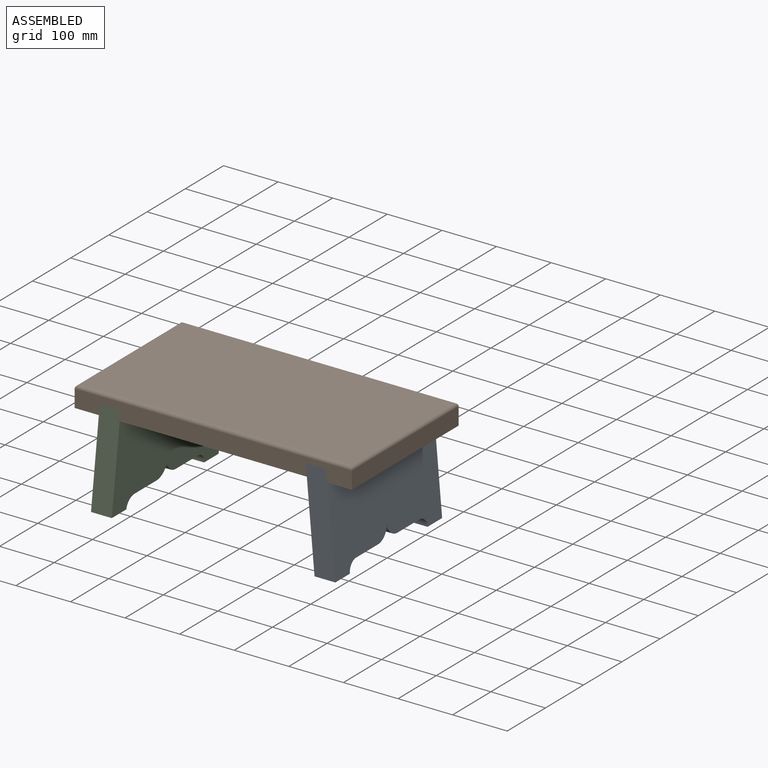
[diagram: assembled view]
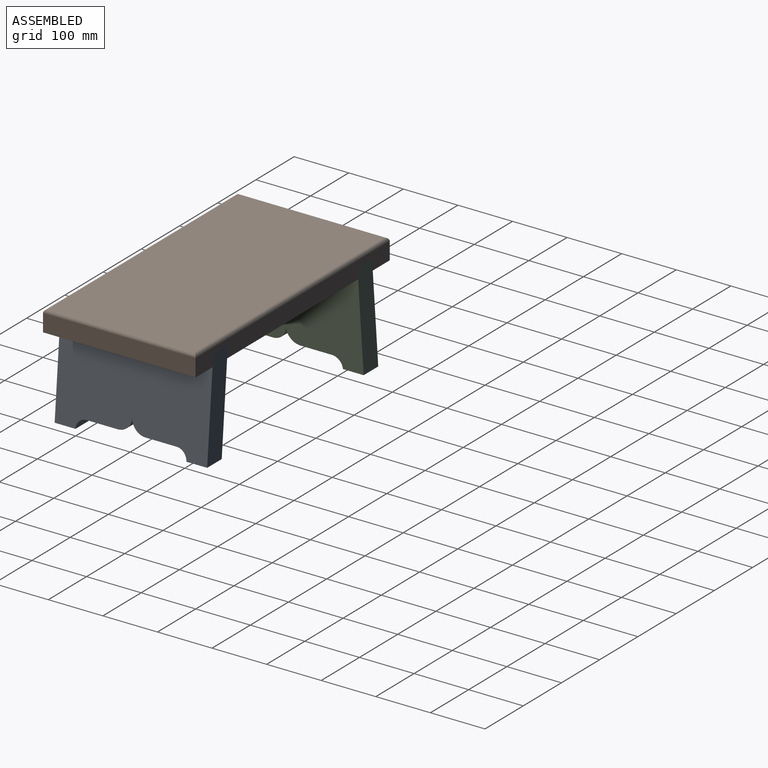
[diagram: assembled view, second angle]
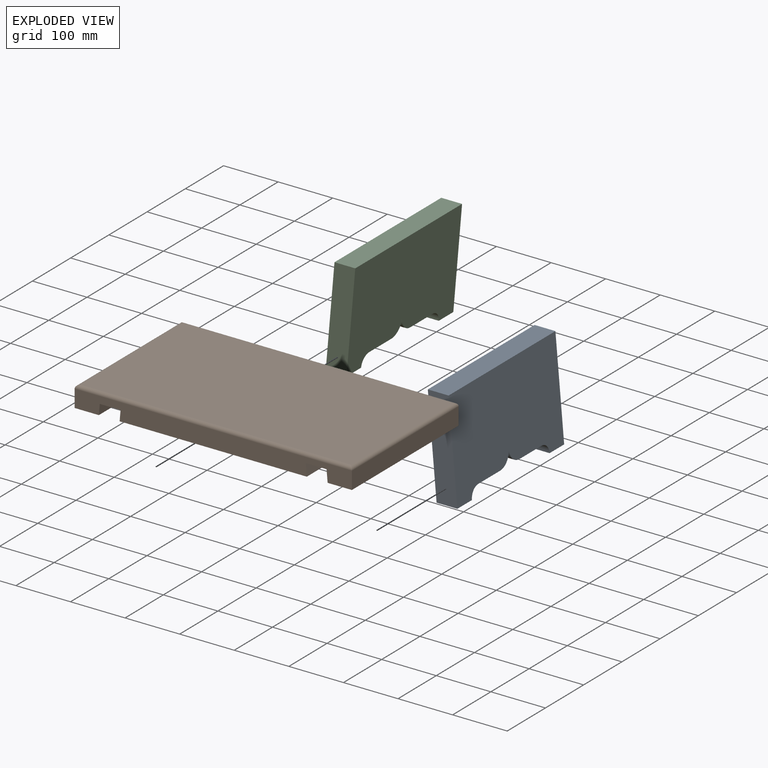
[diagram: exploded view]
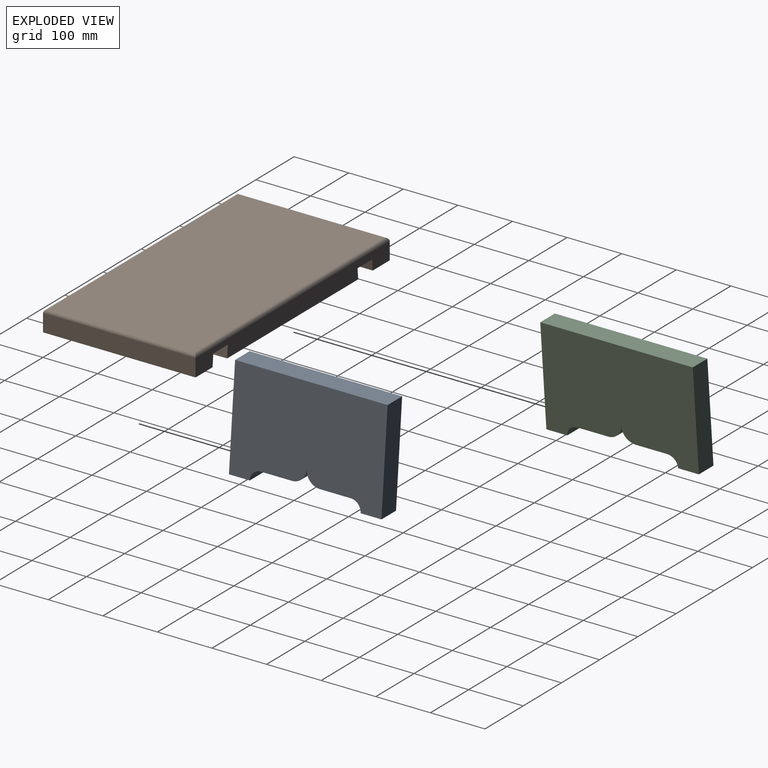
[diagram: exploded view, second angle]
ASSEMBLY  parts=3 mates=3
PART A: 13 faces, bbox 54.1x279.4x183.3 mm
  f0: plane 279.4x183.27mm, normal (-1,0,0.09), area 47392.5mm2, adj f2,f3,f4,f5,f6,f7,f8,f9
  f1: plane 279.4x183.27mm, normal (1,0,-0.09), area 47392.5mm2, adj f2,f3,f4,f5,f6,f7,f8,f9
  f2: plane 183.27x54.13mm, normal (0,1,0), area 6982.4mm2, adj f0,f1,f4,f11
  f3: plane 183.27x54.13mm, normal (0,-1,0), area 6982.4mm2, adj f0,f1,f4,f12
  f4: plane 279.4x38.1mm, normal (0,0,1), area 10645.1mm2, adj f0,f1,f2,f3
  f5: cylinder r=25.4mm len=40.32mm, axis (1,0,0), area 1520.1mm2, adj f0,f1,f6,f10
  f6: plane 57.15x38.1mm, normal (0,0,-1), area 2177.4mm2, adj f0,f1,f5,f7
  f7: cylinder r=19.05mm len=39.77mm, axis (1,0,0), area 1140.1mm2, adj f0,f1,f6,f12
  f8: cylinder r=19.05mm len=39.77mm, axis (1,0,0), area 1140.1mm2, adj f0,f1,f9,f11
  f9: plane 57.15x38.1mm, normal (0,0,-1), area 2177.4mm2, adj f0,f1,f8,f10
  f10: cylinder r=25.4mm len=40.32mm, axis (1,0,0), area 1520.1mm2, adj f0,f1,f5,f9
  f11: plane 38.1x38.1mm, normal (0,0,-1), area 1451.6mm2, adj f0,f1,f2,f8
  f12: plane 38.1x38.1mm, normal (0,0,-1), area 1451.6mm2, adj f0,f1,f3,f7
PART B: 18 faces, bbox 508x279.4x38.1 mm
  f0: plane 279.4x19.05mm, normal (-1,0,-0.09), area 5342.9mm2, adj f1,f11,f12,f13
  f1: plane 279.4x44.45mm, normal (0,0,-1), area 12419.3mm2, adj f0,f2,f12,f13
  f2: plane 279.4x31.75mm, normal (1,0,0), area 8870.9mm2, adj f1,f12,f13,f17
  f3: plane 495.3x266.7mm, normal (0,0,1), area 132096.5mm2, adj f14,f15,f16,f17
  f4: plane 279.4x31.75mm, normal (-1,0,0), area 8870.9mm2, adj f5,f12,f13,f14
  f5: plane 279.4x44.45mm, normal (0,0,-1), area 12419.3mm2, adj f4,f6,f12,f13
  f6: plane 279.4x22.04mm, normal (1,0,-0.09), area 6180.5mm2, adj f5,f7,f12,f13
  f7: plane 279.4x38.1mm, normal (0,0,-1), area 10645.1mm2, adj f6,f8,f12,f13
  f8: plane 279.4x22.04mm, normal (-1,0,0.09), area 6180.5mm2, adj f7,f9,f12,f13
  f9: plane 342.9x279.4mm, normal (0,0,-1), area 95806.3mm2, adj f8,f10,f12,f13
  f10: plane 279.4x19.05mm, normal (1,0,0.09), area 5342.9mm2, adj f9,f11,f12,f13
  f11: plane 279.4x38.1mm, normal (0,0,-1), area 10645.1mm2, adj f0,f10,f12,f13
  f12: plane 508x31.75mm, normal (0,1,0), area 14563.6mm2, adj f0,f1,f2,f4,f5,f6,f7,f8
  f13: plane 508x31.75mm, normal (0,-1,0), area 14563.6mm2, adj f0,f1,f2,f4,f5,f6,f7,f8
  f14: cylinder r=6.35mm len=279.4mm, axis (0,1,0), area 2740.9mm2, adj f3,f4,f15,f16
  f15: cylinder r=6.35mm len=508mm, axis (1,0,0), area 5021mm2, adj f3,f12,f14,f17
  f16: cylinder r=6.35mm len=508mm, axis (-1,0,0), area 5021mm2, adj f3,f13,f14,f17
  f17: cylinder r=6.35mm len=279.4mm, axis (0,-1,0), area 2740.9mm2, adj f2,f3,f15,f16
PART C: 13 faces, bbox 54.1x279.4x183.3 mm
  f0: plane 279.4x183.27mm, normal (-1,0,0.09), area 47392.5mm2, adj f2,f3,f4,f5,f6,f7,f8,f9
  f1: plane 279.4x183.27mm, normal (1,0,-0.09), area 47392.5mm2, adj f2,f3,f4,f5,f6,f7,f8,f9
  f2: plane 183.27x54.13mm, normal (0,1,0), area 6982.4mm2, adj f0,f1,f4,f11
  f3: plane 183.27x54.13mm, normal (0,-1,0), area 6982.4mm2, adj f0,f1,f4,f12
  f4: plane 279.4x38.1mm, normal (0,0,1), area 10645.1mm2, adj f0,f1,f2,f3
  f5: cylinder r=25.4mm len=40.32mm, axis (1,0,0), area 1520.1mm2, adj f0,f1,f6,f10
  f6: plane 57.15x38.1mm, normal (0,0,-1), area 2177.4mm2, adj f0,f1,f5,f7
  f7: cylinder r=19.05mm len=39.77mm, axis (1,0,0), area 1140.1mm2, adj f0,f1,f6,f12
  f8: cylinder r=19.05mm len=39.77mm, axis (1,0,0), area 1140.1mm2, adj f0,f1,f9,f11
  f9: plane 57.15x38.1mm, normal (0,0,-1), area 2177.4mm2, adj f0,f1,f8,f10
  f10: cylinder r=25.4mm len=40.32mm, axis (1,0,0), area 1520.1mm2, adj f0,f1,f5,f9
  f11: plane 38.1x38.1mm, normal (0,0,-1), area 1451.6mm2, adj f0,f1,f2,f8
  f12: plane 38.1x38.1mm, normal (0,0,-1), area 1451.6mm2, adj f0,f1,f3,f7
PLACE A rot(axis=(0,0,1),180deg) t=(659.53,241.92,-38.46)mm
PLACE B rot(axis=(0,0,1),180deg) t=(731.56,241.92,-106.88)mm
PLACE C t=(139.98,-37.48,-41.44)mm fixed
MATE planar C.f3 <-> B.f12  axis (0,-1,0) through (369.8,-37.48,-99.98)mm
MATE planar A.f2 <-> B.f12  axis (0,-1,0) through (747.21,-37.48,-97)mm
MATE planar B.f12 <-> C.f3  axis (0,-1,0) through (407.9,-37.48,-99.98)mm
